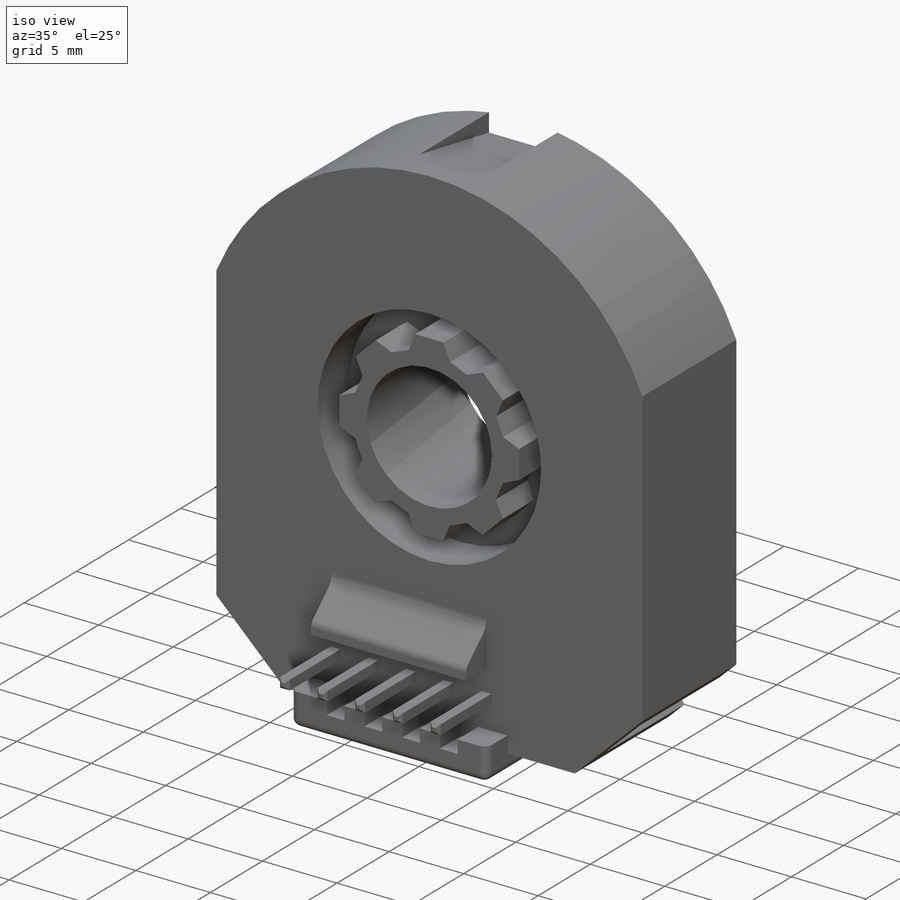
[diagram: iso view]
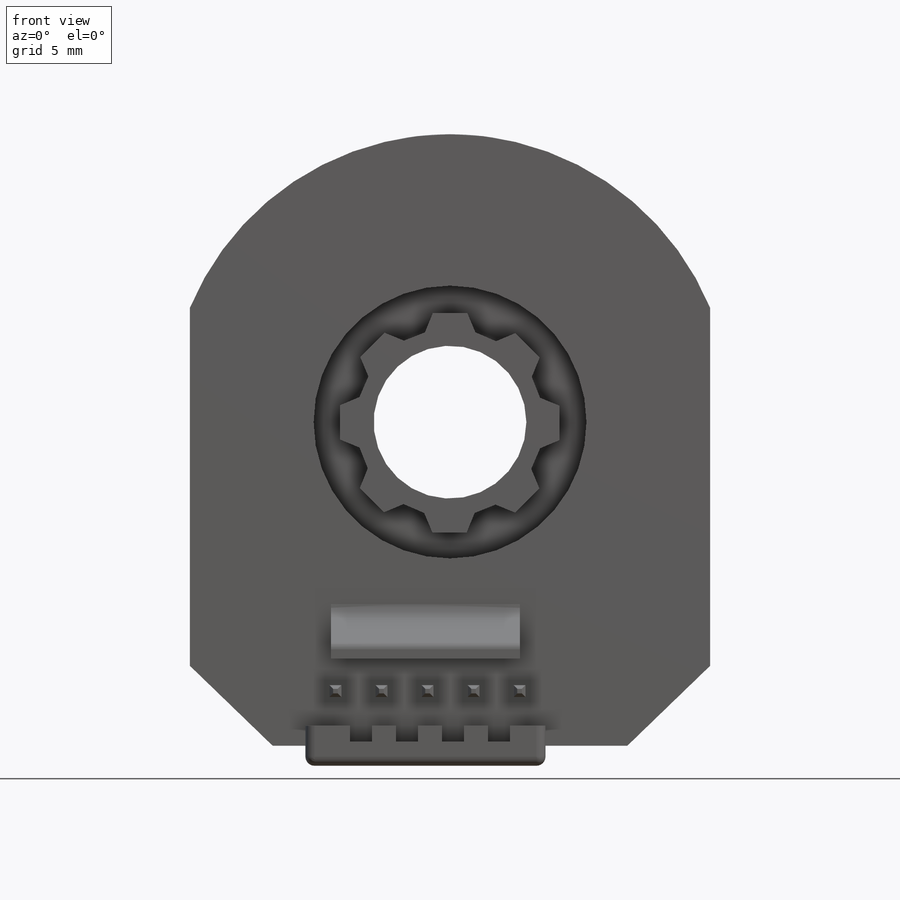
[diagram: front view]
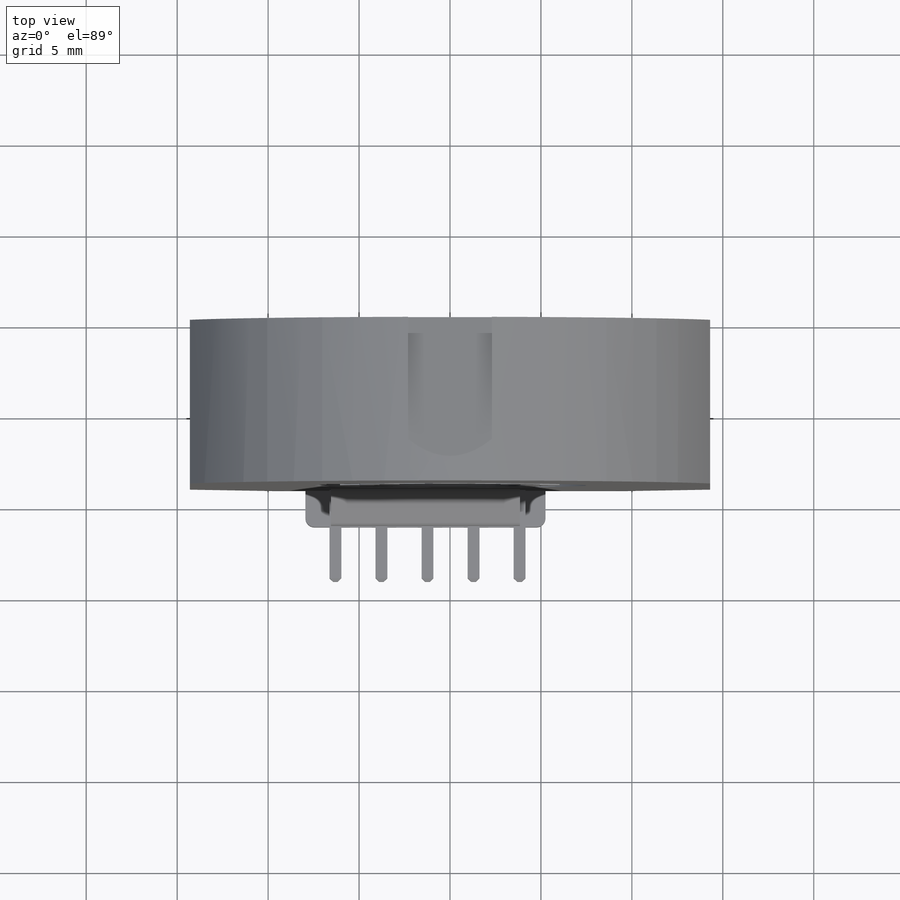
[diagram: top view]
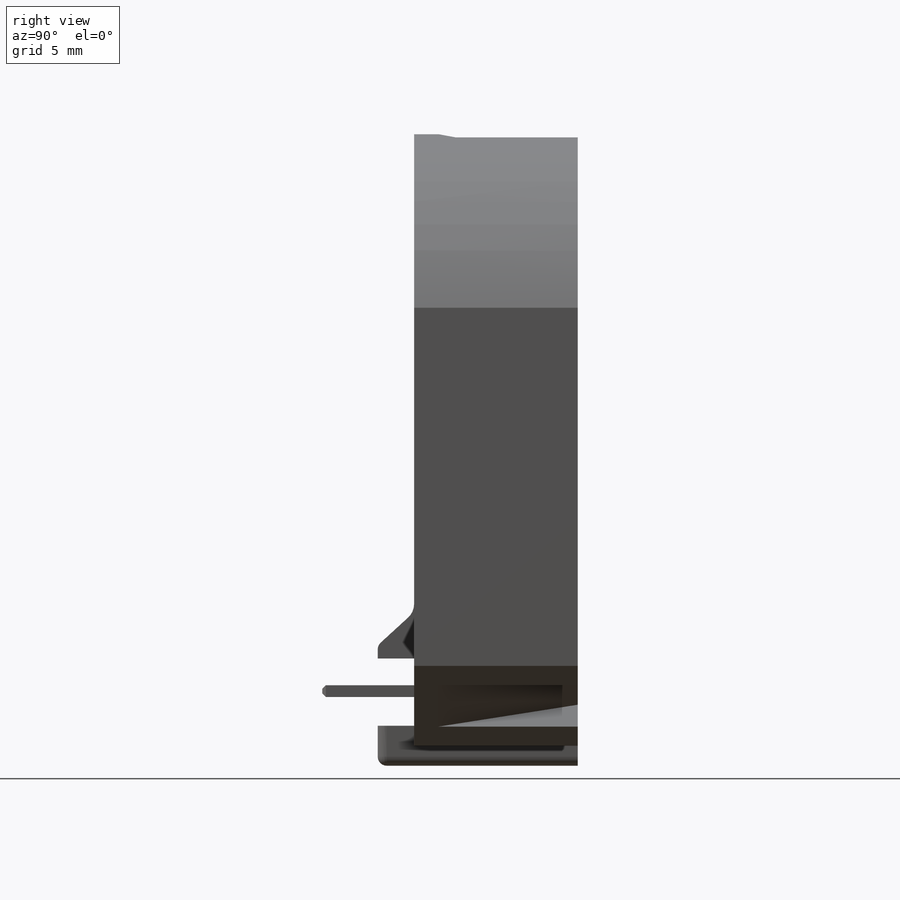
[diagram: right view]
SOLIDWORKS PART (.sldprt)
format: sldprt  version: not decoded by parser v0  size: 1,260,544 bytes
history: native  units: mm
features: sketch x11, cut_extrude x7, extrude x3, fillet x2, material x1, chamfer x1, pattern_linear x1, plane x1, mirror x1 (+13 scaffold rows collapsed)
feature tree (41):
  scaffold x13  (default folders/planes/origin — collapsed)
  material  "Material <not specified>"
  sketch  "Sketch1"  dims[c1.D4=~15.488483mm c1.D1=34.21mm c1.D2=28.6mm c1.D3=19.69mm c1.D5=~7.254852mm c1.D6=~8.66423mm c2.D1=~4.146902mm c3.D1=~138.225437deg c4.D1=~6.28349mm c5.D1=136.0deg c5.D5=~6.120439mm c6.D5=136.0deg c6.D6=4.55mm c6.D7=4.55mm c6.D8=~8.09138mm c7.D6=4.55mm c7.D7=~8.09138mm c7.D8=~8.09138mm]
  extrude  "Boss-Extrude1"  Depth=9mm
  sketch  "Sketch3"  dims[D1=8.5mm D6=15.0mm D2=9.7mm D3=12.0mm D4=12.0mm D5=8.0]
  cut_extrude  "Cut-Extrude1"  Depth=3mm
  sketch  "Sketch4"  dims[D1=8.4mm]
  cut_extrude  "Cut-Extrude2"  [1 undecoded]
  sketch  "Sketch9"  dims[D1=13.2mm D2=2.2mm D3=1.1mm D4=6.35mm D5=3.7mm D6=10.39mm D7=1.405mm D8=2.55mm D9=1.405mm]
  extrude  "Boss-Extrude3"  Depth=11mm
  sketch  "Sketch10"  dims[D1=0.72mm]
  cut_extrude  "Cut-Extrude3"  [1 undecoded]
  fillet  "Fillet1"  Radius=0.5mm
  fillet  "Fillet2"  Radius=1mm
  sketch  "Sketch11"  dims[D1=1.47mm D2=0.65mm D3=0.08mm D4=5.0]
  extrude  "Boss-Extrude4"  Depth=5.05mm
  chamfer  "Chamfer1"  Distance=0.2mm Angle=45deg
  sketch  "Sketch12"  dims[D1=0.48mm D2=1.2mm D3=0.88mm]
  cut_extrude  "Cut-Extrude4"  [1 undecoded]
  pattern_linear  "LPattern1"  Count1=4 Count2=1 Spacing1=2.53mm Spacing2=50mm
  sketch  "Sketch13"  dims[c1.D1=1.05mm c1.D2=2.0mm c1.D3=1.7mm c1.D4=2.95mm c1.D5=1.05mm c1.D6=1.05mm c2.D1=~20.051509mm c2.D7=2.03mm c2.D8=2.03mm c2.D9=2.03mm]
  cut_extrude  "Cut-Extrude5"  Depth=1.5mm
  sketch  "Sketch14"  dims[D1=1.4mm D2=7.65mm]
  cut_extrude  "Cut-Extrude6"  Depth=4.6mm
  sketch  "Sketch18"
  plane  "Plane1"
  sketch  "Sketch15"  dims[c1.D1=7.65mm c1.D2=1.7mm c2.D1=7.65mm c2.D2=1.67mm]
  cut_extrude  "Cut-Extrude7"  Depth=3.29mm
  mirror  "Mirror1"
decode coverage: 21 of 26 modeling features carry decoded parameters
note: ~ marks probable driven/reference dimensions
note: 3 parameter values undecoded
summary: no parameter record found for 3 features
note: suppression state not decoded; provenance and decode notes live in map.json
